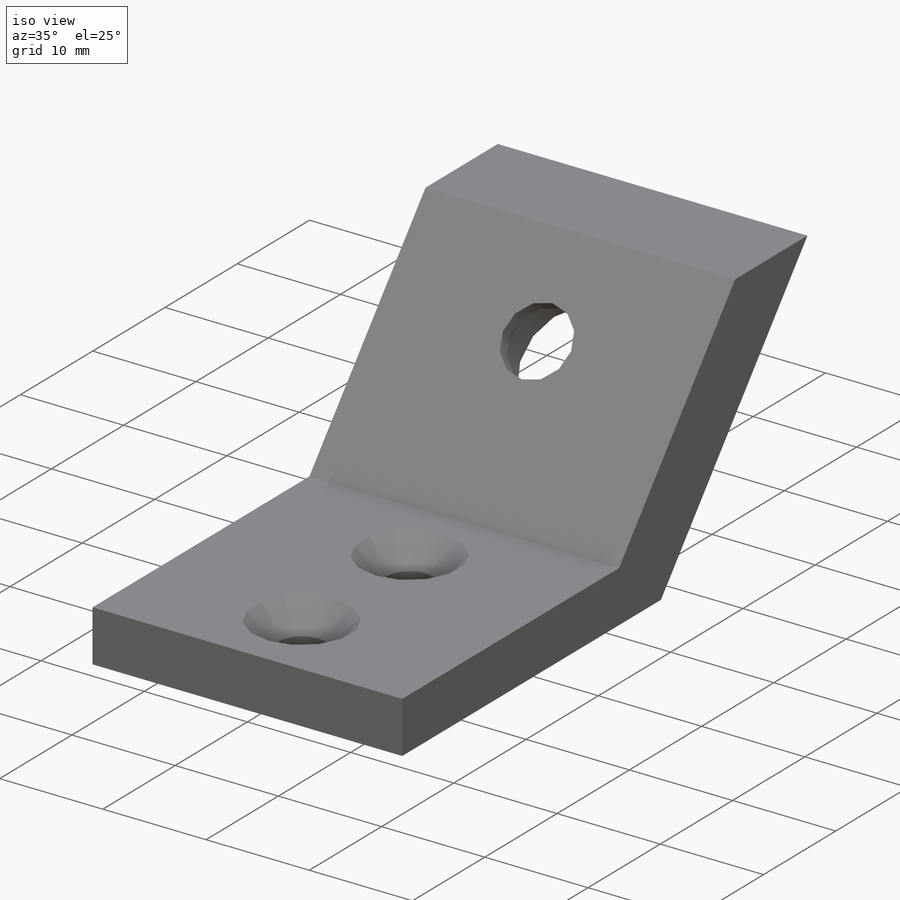
[diagram: iso view]
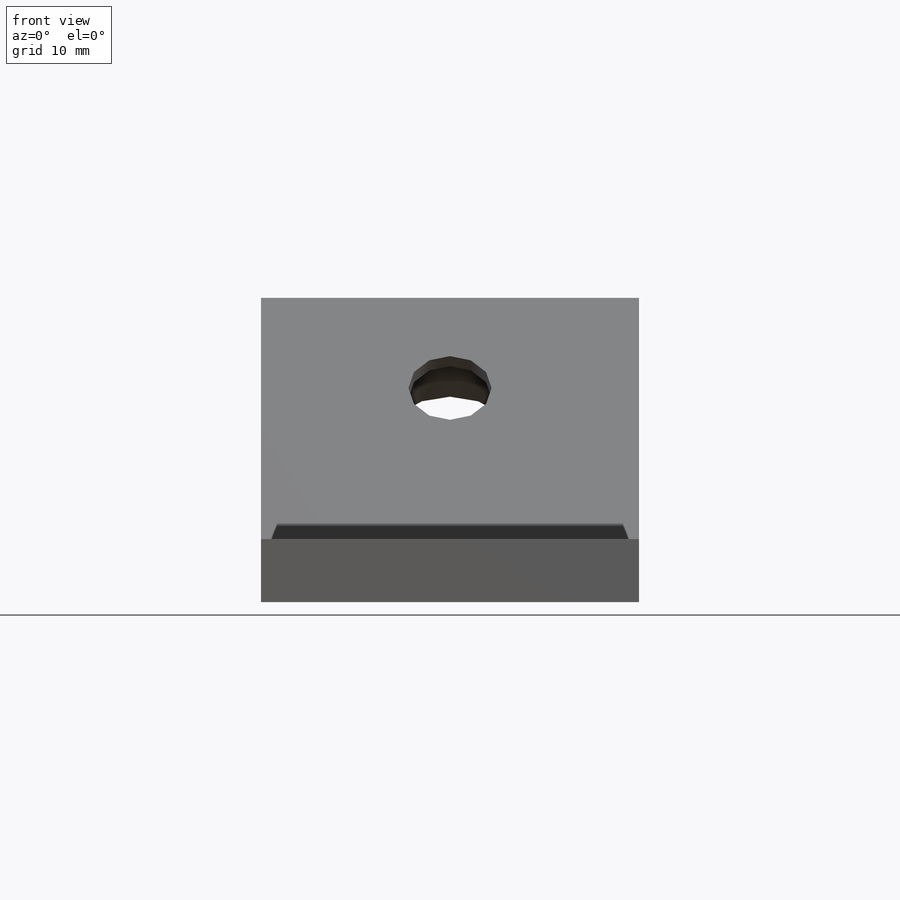
[diagram: front view]
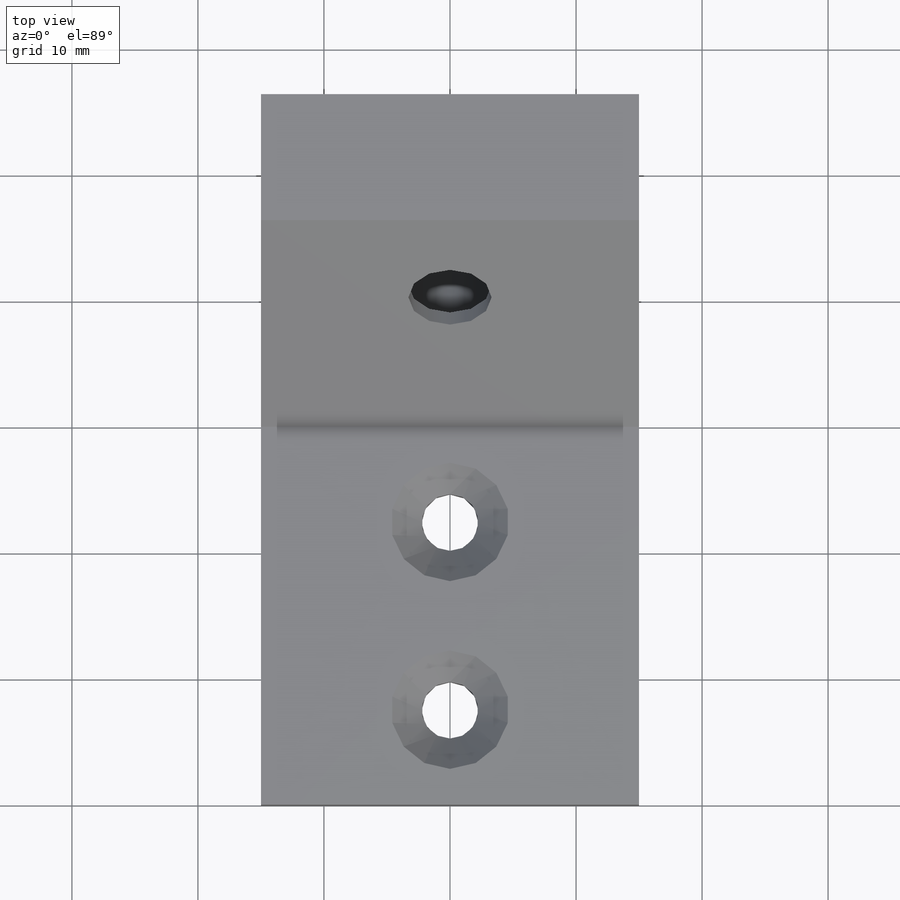
[diagram: top view]
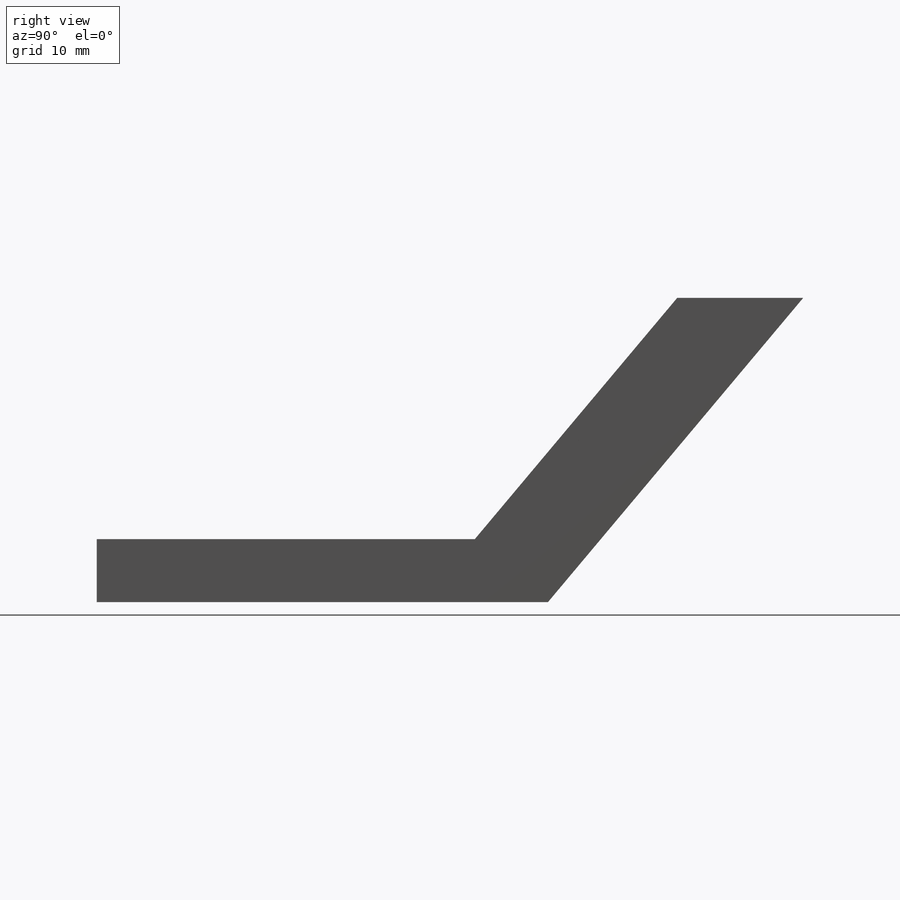
[diagram: right view]
SOLIDWORKS PART (.sldprt)
format: sldprt  version: not decoded by parser v0  size: 251,904 bytes
history: native  units: mm
features: sketch x6, extrude x2, hole x2, material x1 (+13 scaffold rows collapsed)
feature tree (24):
  scaffold x13  (default folders/planes/origin — collapsed)
  material  "PLA Black"
  sketch  "Sketch1"  dims[c1.D1=2.1mm c1.D2=6.5mm c1.D3=3.0mm c1.D4=3.0mm c1.D5=10.5mm c2.D4=30.0mm c2.D1=5.0mm]
  extrude  "Boss-Extrude1"  Depth=30mm
  sketch  "Sketch3"  dims[c1.D1=~10.343773mm c2.D1=50.0deg c2.D2=10.0mm c2.D3=25.0mm]
  extrude  "Boss-Extrude3"  [1 undecoded]
  hole  "CBORE for M6 Hex Socket Head Cap Screw1"  Diameter=6.6mm Depth=42.951875mm
  sketch  "Sketch5"
  sketch  "Sketch6"  dims[hole-wizard template sketch: 42 standard entries collapsed; hole parameters kept: c12.Thru Hole Depth=~42.951875mm c12.C'Bore Dia.=11.0mm c12.C'Bore Depth=6.4mm c12.Near C'Sink Dia.=11.05mm c12.D6=~4.399409mm c12.Near C'Sink Angle=90.0deg]
  hole  "CSK for M4 Countersunk Flat Head Screw1"  Diameter=4.5mm Depth=5mm
  sketch  "Sketch8"  dims[D1=14.9mm]
  sketch  "Sketch7"  dims[hole-wizard template sketch: 55 standard entries collapsed; hole parameters kept: c17.Thru Hole Depth=5.0mm c17.Near C'Sink Dia.=9.4mm c17.D4=~3.666174mm c17.Near C'Sink Angle=90.0deg]
decode coverage: 8 of 10 modeling features carry decoded parameters
note: ~ marks probable driven/reference dimensions
note: 1 parameter value undecoded
note: suppression state not decoded; provenance and decode notes live in map.json
